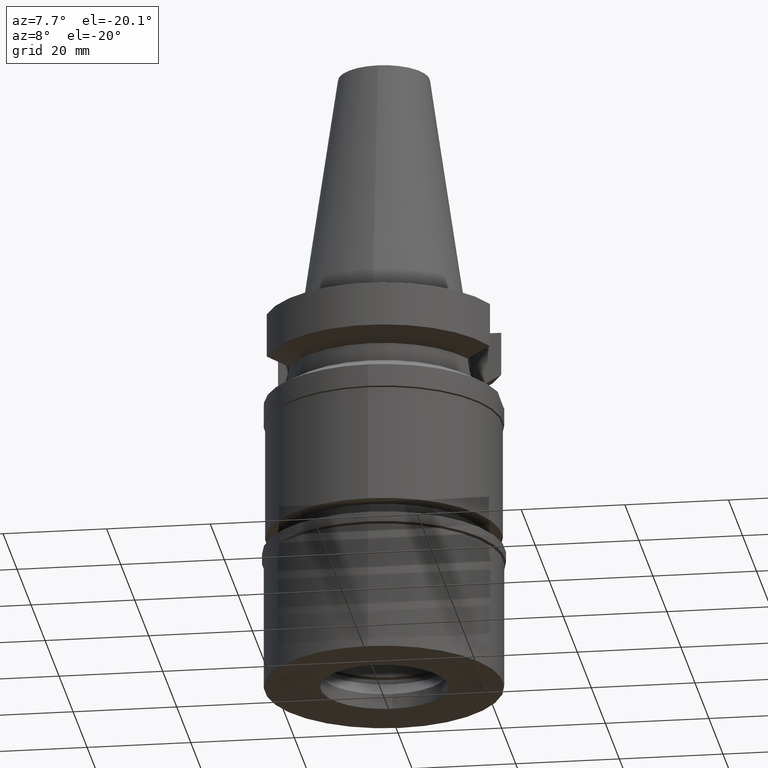
[diagram: clean part render]
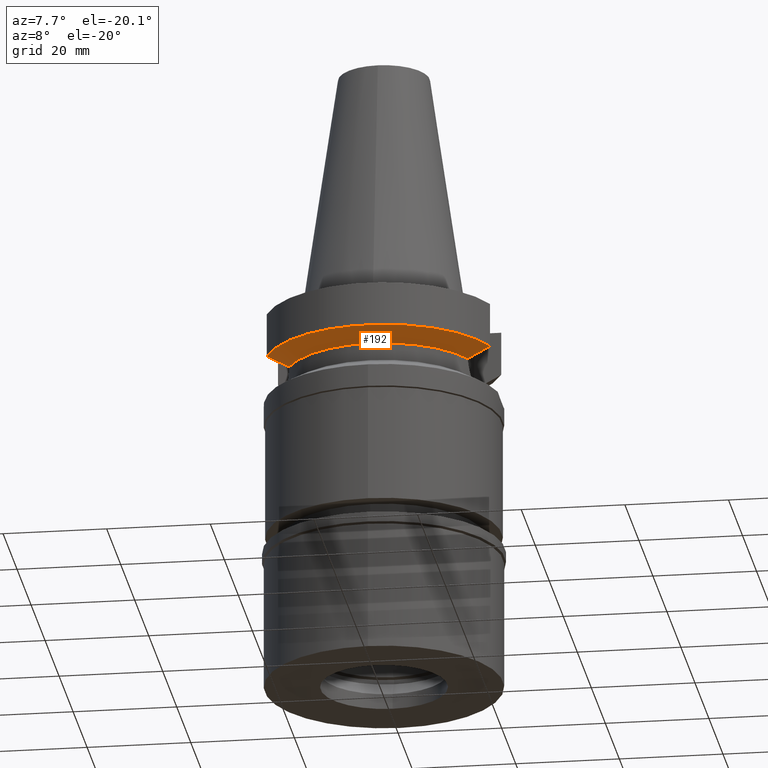
[diagram: same view with one face highlighted and labeled with its STEP entity id]
A machine part, auxiliary view. The second image highlights one B-rep face of the part: STEP entity #192.
In plain terms, the highlighted conical surface has half-angle 60 deg.
Its self-contained STEP definition (entity closure, byte-faithful):
#32 = ORIENTED_EDGE ( 'NONE', *, *, #1007, .F. ) ;
#48 = DIRECTION ( 'NONE',  ( 0.0000000000000000000, 0.0000000000000000000, 1.000000000000000000 ) ) ;
#151 = EDGE_CURVE ( 'NONE', #2910, #418, #1283, .T. ) ;
#192 = ADVANCED_FACE ( 'NONE', ( #2744 ), #1239, .T. ) ;
#231 = DIRECTION ( 'NONE',  ( 0.0000000000000000000, 1.000000000000000000, 0.0000000000000000000 ) ) ;
#275 = CARTESIAN_POINT ( 'NONE',  ( 18.96736186693999926, -8.050001277873001015, -10.94999977540000025 ) ) ;
#332 = CARTESIAN_POINT ( 'NONE',  ( 20.64101735201234078, -8.050004185258087475, -10.05624233374761722 ) ) ;
#337 = AXIS2_PLACEMENT_3D ( 'NONE', #580, #1724, #810 ) ;
#418 = VERTEX_POINT ( 'NONE', #1219 ) ;
#470 = EDGE_LOOP ( 'NONE', ( #706, #1615, #2232, #2174, #32, #2678 ) ) ;
#508 = EDGE_CURVE ( 'NONE', #948, #1257, #1179, .T. ) ;
#571 = CARTESIAN_POINT ( 'NONE',  ( 17.23531135313000107, -7.996501749111999402, -11.87660739354000050 ) ) ;
#580 = CARTESIAN_POINT ( 'NONE',  ( 0.0000000000000000000, 0.0000000000000000000, -11.87660944646999894 ) ) ;
#706 = ORIENTED_EDGE ( 'NONE', *, *, #151, .F. ) ;
#715 = CARTESIAN_POINT ( 'NONE',  ( -21.54524325238000060, -8.049999577366000025, -9.567211146628999074 ) ) ;
#747 = CARTESIAN_POINT ( 'NONE',  ( -21.54524325238000060, -8.049999577366000025, -9.567211146628999074 ) ) ;
#810 = DIRECTION ( 'NONE',  ( 0.0000000000000000000, -1.000000000000000000, 0.0000000000000000000 ) ) ;
#837 = EDGE_CURVE ( 'NONE', #2791, #418, #1447, .T. ) ;
#866 = CARTESIAN_POINT ( 'NONE',  ( -18.96738966519000158, -8.049994318072998922, -10.95000099924999937 ) ) ;
#880 = CARTESIAN_POINT ( 'NONE',  ( -18.96738966519000158, -8.049994318072998922, -10.95000099924999937 ) ) ;
#948 = VERTEX_POINT ( 'NONE', #2180 ) ;
#1007 = EDGE_CURVE ( 'NONE', #2791, #1257, #1519, .T. ) ;
#1124 = CARTESIAN_POINT ( 'NONE',  ( -20.64098922447007922, -8.049999155425632935, -10.05625859811074996 ) ) ;
#1179 = B_SPLINE_CURVE_WITH_KNOTS ( 'NONE', 3,
 ( #275, #1670, #332, #1891 ),
 .UNSPECIFIED., .F., .F.,
 ( 4, 4 ),
 ( 0.0000000000000000000, 1.000000000000000000 ),
 .UNSPECIFIED. ) ;
#1216 = CARTESIAN_POINT ( 'NONE',  ( 0.0000000000000000000, 0.0000000000000000000, -9.567208369710998639 ) ) ;
#1219 = CARTESIAN_POINT ( 'NONE',  ( -18.96738966519000158, -8.049994318072998922, -10.95000099924999937 ) ) ;
#1239 = CONICAL_SURFACE ( 'NONE', #2413, 21.00000000000000000, 1.047197551196400456 ) ;
#1257 = VERTEX_POINT ( 'NONE', #2705 ) ;
#1283 = B_SPLINE_CURVE_WITH_KNOTS ( 'NONE', 3,
 ( #2325, #2014, #2943, #866 ),
 .UNSPECIFIED., .F., .F.,
 ( 4, 4 ),
 ( 0.0000000000000000000, 1.000000000000000000 ),
 .UNSPECIFIED. ) ;
#1389 = CARTESIAN_POINT ( 'NONE',  ( 17.72682660392796095, -8.027186146807153477, -11.61172867117429419 ) ) ;
#1447 = B_SPLINE_CURVE_WITH_KNOTS ( 'NONE', 3,
 ( #715, #1124, #2308, #880 ),
 .UNSPECIFIED., .F., .F.,
 ( 4, 4 ),
 ( 0.0000000000000000000, 1.000000000000000000 ),
 .UNSPECIFIED. ) ;
#1519 = CIRCLE ( 'NONE', #2685, 23.00000000000000000 ) ;
#1615 = ORIENTED_EDGE ( 'NONE', *, *, #1772, .F. ) ;
#1667 = DIRECTION ( 'NONE',  ( 0.0000000000000000000, -1.000000000000000000, 0.0000000000000000000 ) ) ;
#1670 = CARTESIAN_POINT ( 'NONE',  ( 19.78176446227740826, -8.050001299918182696, -10.51717305795227553 ) ) ;
#1724 = DIRECTION ( 'NONE',  ( 0.0000000000000000000, 0.0000000000000000000, -1.000000000000000000 ) ) ;
#1772 = EDGE_CURVE ( 'NONE', #3001, #2910, #2197, .T. ) ;
#1891 = CARTESIAN_POINT ( 'NONE',  ( 21.54524309446999908, -8.050000000002000888, -9.567208369710998639 ) ) ;
#1963 = CARTESIAN_POINT ( 'NONE',  ( -17.23531622822000386, -7.996491147958001200, -11.87660607717000083 ) ) ;
#2014 = CARTESIAN_POINT ( 'NONE',  ( -17.72598979704696021, -8.027133611820556069, -11.61218201620528490 ) ) ;
#2063 = CARTESIAN_POINT ( 'NONE',  ( 18.96736186693999926, -8.050001277873001015, -10.94999977540000025 ) ) ;
#2094 = DIRECTION ( 'NONE',  ( 0.0000000000000000000, 0.0000000000000000000, 1.000000000000000000 ) ) ;
#2174 = ORIENTED_EDGE ( 'NONE', *, *, #508, .T. ) ;
#2180 = CARTESIAN_POINT ( 'NONE',  ( 18.96736186693999926, -8.050001277873001015, -10.94999977540000025 ) ) ;
#2197 = CIRCLE ( 'NONE', #337, 19.00000000000000000 ) ;
#2232 = ORIENTED_EDGE ( 'NONE', *, *, #2661, .F. ) ;
#2308 = CARTESIAN_POINT ( 'NONE',  ( -19.78174442230803365, -8.049991903457407005, -10.51718567404478755 ) ) ;
#2310 = CARTESIAN_POINT ( 'NONE',  ( 0.0000000000000000000, 0.0000000000000000000, -10.72190890808999875 ) ) ;
#2317 = B_SPLINE_CURVE_WITH_KNOTS ( 'NONE', 3,
 ( #2063, #2992, #1389, #2569 ),
 .UNSPECIFIED., .F., .F.,
 ( 4, 4 ),
 ( 0.0000000000000000000, 1.000000000000000000 ),
 .UNSPECIFIED. ) ;
#2325 = CARTESIAN_POINT ( 'NONE',  ( -17.23531622822000386, -7.996491147958001200, -11.87660607717000083 ) ) ;
#2413 = AXIS2_PLACEMENT_3D ( 'NONE', #2310, #2094, #231 ) ;
#2569 = CARTESIAN_POINT ( 'NONE',  ( 17.23531135313000107, -7.996501749111999402, -11.87660739354000050 ) ) ;
#2661 = EDGE_CURVE ( 'NONE', #948, #3001, #2317, .T. ) ;
#2678 = ORIENTED_EDGE ( 'NONE', *, *, #837, .T. ) ;
#2685 = AXIS2_PLACEMENT_3D ( 'NONE', #1216, #48, #1667 ) ;
#2705 = CARTESIAN_POINT ( 'NONE',  ( 21.54524309446999908, -8.050000000002000888, -9.567208369710998639 ) ) ;
#2744 = FACE_OUTER_BOUND ( 'NONE', #470, .T. ) ;
#2791 = VERTEX_POINT ( 'NONE', #747 ) ;
#2910 = VERTEX_POINT ( 'NONE', #1963 ) ;
#2943 = CARTESIAN_POINT ( 'NONE',  ( -18.30334760937029515, -8.049999956192346318, -11.30291655530395722 ) ) ;
#2992 = CARTESIAN_POINT ( 'NONE',  ( 18.30417677519795916, -8.050000009833846448, -11.30245973939780235 ) ) ;
#3001 = VERTEX_POINT ( 'NONE', #571 ) ;